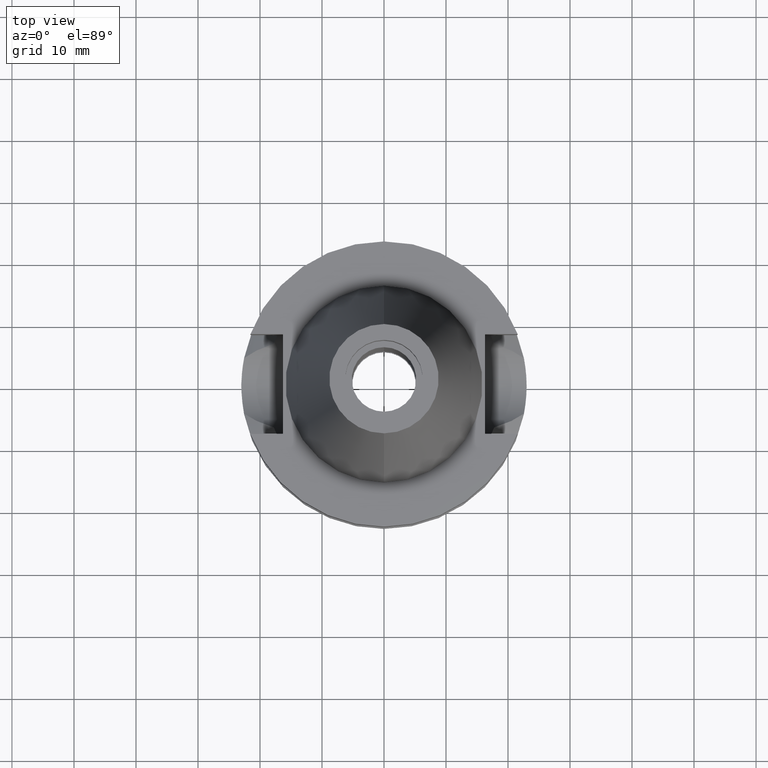
[diagram: clean part render]
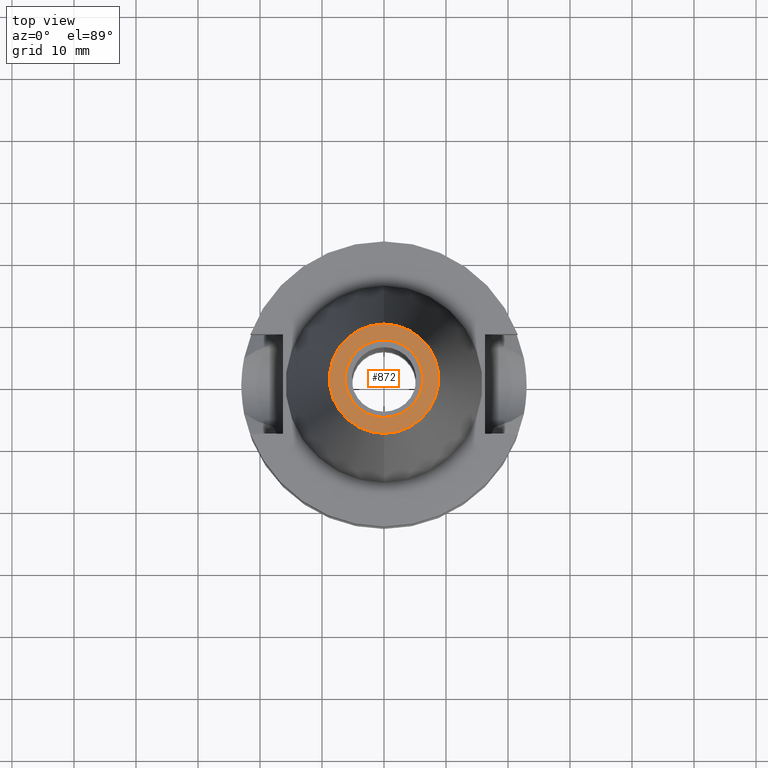
[diagram: same view with one face highlighted and labeled with its STEP entity id]
A machine part, top view. The second image highlights one B-rep face of the part: STEP entity #872.
In plain terms, the highlighted planar face has unit normal (0, 0, -1).
Its self-contained STEP definition (entity closure, byte-faithful):
#26 = CARTESIAN_POINT ( 'NONE',  ( 0.0000000000000000000, -6.250000000000000000, 48.39999999999999858 ) ) ;
#126 = DIRECTION ( 'NONE',  ( 0.0000000000000000000, 1.000000000000000000, 0.0000000000000000000 ) ) ;
#147 = ORIENTED_EDGE ( 'NONE', *, *, #478, .F. ) ;
#205 = CARTESIAN_POINT ( 'NONE',  ( 0.0000000000000000000, 8.816791732783000768, 48.39999999999999858 ) ) ;
#423 = DIRECTION ( 'NONE',  ( 0.0000000000000000000, 1.000000000000000000, 0.0000000000000000000 ) ) ;
#478 = EDGE_CURVE ( 'NONE', #1221, #3085, #2179, .T. ) ;
#510 = AXIS2_PLACEMENT_3D ( 'NONE', #1264, #581, #1057 ) ;
#544 = EDGE_CURVE ( 'NONE', #3085, #1221, #608, .T. ) ;
#581 = DIRECTION ( 'NONE',  ( 0.0000000000000000000, 0.0000000000000000000, 1.000000000000000000 ) ) ;
#584 = CARTESIAN_POINT ( 'NONE',  ( 0.0000000000000000000, 0.0000000000000000000, 48.39999999999999858 ) ) ;
#608 = CIRCLE ( 'NONE', #510, 6.250000000000000000 ) ;
#632 = DIRECTION ( 'NONE',  ( 0.0000000000000000000, 0.0000000000000000000, -1.000000000000000000 ) ) ;
#636 = VERTEX_POINT ( 'NONE', #2727 ) ;
#855 = AXIS2_PLACEMENT_3D ( 'NONE', #584, #2466, #1803 ) ;
#870 = PLANE ( 'NONE',  #855 ) ;
#872 = ADVANCED_FACE ( 'NONE', ( #1426, #2899 ), #870, .F. ) ;
#936 = VERTEX_POINT ( 'NONE', #205 ) ;
#992 = EDGE_LOOP ( 'NONE', ( #2285, #1754 ) ) ;
#1057 = DIRECTION ( 'NONE',  ( 0.0000000000000000000, -1.000000000000000000, 0.0000000000000000000 ) ) ;
#1123 = DIRECTION ( 'NONE',  ( 0.0000000000000000000, 0.0000000000000000000, 1.000000000000000000 ) ) ;
#1221 = VERTEX_POINT ( 'NONE', #2571 ) ;
#1244 = AXIS2_PLACEMENT_3D ( 'NONE', #2255, #1123, #126 ) ;
#1264 = CARTESIAN_POINT ( 'NONE',  ( 0.0000000000000000000, 0.0000000000000000000, 48.39999999999999858 ) ) ;
#1300 = EDGE_CURVE ( 'NONE', #936, #636, #1435, .T. ) ;
#1426 = FACE_OUTER_BOUND ( 'NONE', #992, .T. ) ;
#1435 = CIRCLE ( 'NONE', #2218, 8.816791732783000768 ) ;
#1712 = EDGE_LOOP ( 'NONE', ( #147, #2921 ) ) ;
#1754 = ORIENTED_EDGE ( 'NONE', *, *, #2186, .F. ) ;
#1803 = DIRECTION ( 'NONE',  ( 0.0000000000000000000, -1.000000000000000000, 0.0000000000000000000 ) ) ;
#1977 = CARTESIAN_POINT ( 'NONE',  ( 0.0000000000000000000, 0.0000000000000000000, 48.39999999999999858 ) ) ;
#2144 = CIRCLE ( 'NONE', #2731, 8.816791732783000768 ) ;
#2179 = CIRCLE ( 'NONE', #1244, 6.250000000000000000 ) ;
#2186 = EDGE_CURVE ( 'NONE', #636, #936, #2144, .T. ) ;
#2218 = AXIS2_PLACEMENT_3D ( 'NONE', #2553, #3080, #423 ) ;
#2255 = CARTESIAN_POINT ( 'NONE',  ( 0.0000000000000000000, 0.0000000000000000000, 48.39999999999999858 ) ) ;
#2285 = ORIENTED_EDGE ( 'NONE', *, *, #1300, .F. ) ;
#2466 = DIRECTION ( 'NONE',  ( 0.0000000000000000000, 0.0000000000000000000, -1.000000000000000000 ) ) ;
#2553 = CARTESIAN_POINT ( 'NONE',  ( 0.0000000000000000000, 0.0000000000000000000, 48.39999999999999858 ) ) ;
#2571 = CARTESIAN_POINT ( 'NONE',  ( 0.0000000000000000000, 6.250000000000000000, 48.39999999999999858 ) ) ;
#2727 = CARTESIAN_POINT ( 'NONE',  ( 0.0000000000000000000, -8.816791732783000768, 48.39999999999999858 ) ) ;
#2731 = AXIS2_PLACEMENT_3D ( 'NONE', #1977, #632, #2958 ) ;
#2899 = FACE_BOUND ( 'NONE', #1712, .T. ) ;
#2921 = ORIENTED_EDGE ( 'NONE', *, *, #544, .F. ) ;
#2958 = DIRECTION ( 'NONE',  ( 0.0000000000000000000, -1.000000000000000000, 0.0000000000000000000 ) ) ;
#3080 = DIRECTION ( 'NONE',  ( 0.0000000000000000000, 0.0000000000000000000, -1.000000000000000000 ) ) ;
#3085 = VERTEX_POINT ( 'NONE', #26 ) ;